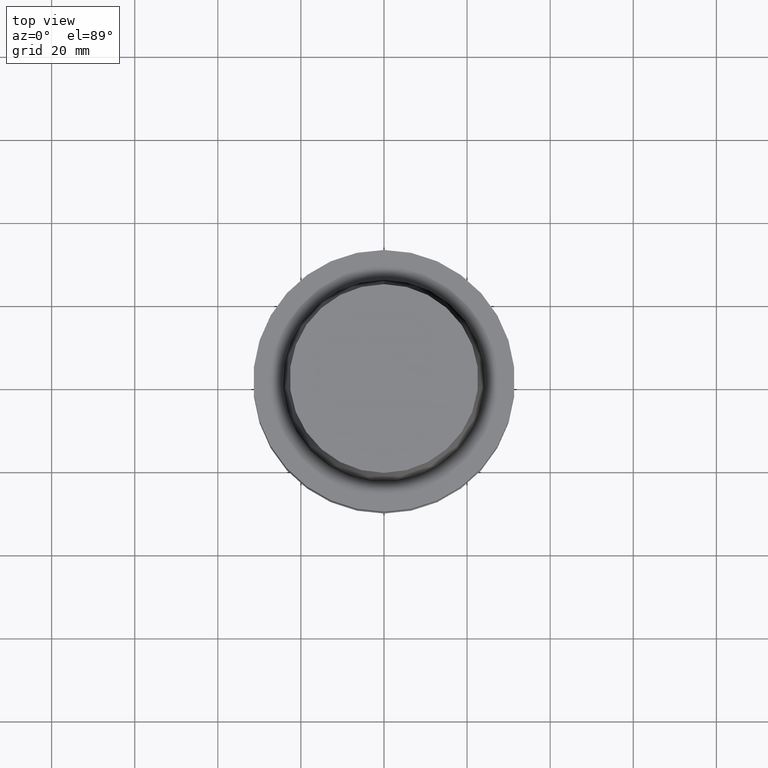
[diagram: clean part render]
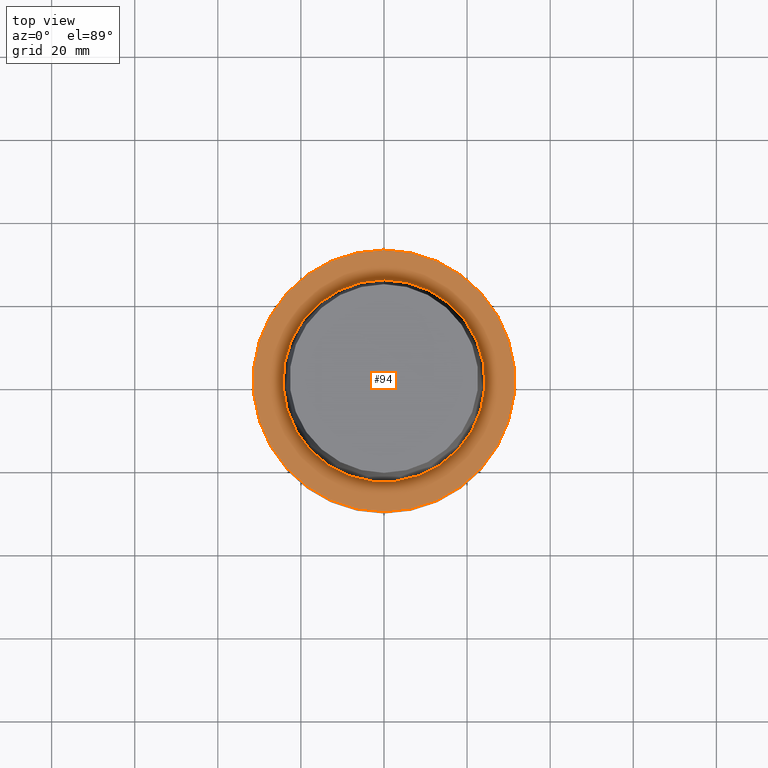
[diagram: same view with one face highlighted and labeled with its STEP entity id]
A machine part, top view. The second image highlights one B-rep face of the part: STEP entity #94.
In plain terms, the highlighted planar face has unit normal (-0, -0, 1).
Its self-contained STEP definition (entity closure, byte-faithful):
#94=ADVANCED_FACE('',(#151,#152),#153,.T.);
#151=FACE_BOUND('',#209,.T.);
#152=FACE_OUTER_BOUND('',#210,.T.);
#153=PLANE('',#211);
#209=EDGE_LOOP('',(#305));
#210=EDGE_LOOP('',(#306));
#211=AXIS2_PLACEMENT_3D('',#307,#308,#309);
#305=ORIENTED_EDGE('',*,*,#311,.T.);
#306=ORIENTED_EDGE('',*,*,#313,.F.);
#307=CARTESIAN_POINT('',(-3.40924878510528E-031,27.907500000104,3.36768305473321E-015));
#308=DIRECTION('',(-6.12323399573677E-017,-1.08546795432774E-016,1.0));
#309=DIRECTION('',(1.14737270099915E-032,-1.0,-1.08546795432774E-016));
#311=EDGE_CURVE('',#331,#331,#332,.T.);
#313=EDGE_CURVE('',#335,#335,#336,.T.);
#331=VERTEX_POINT('',#369);
#332=CIRCLE('',#370,24.3150000002079);
#335=VERTEX_POINT('',#373);
#336=CIRCLE('',#374,31.5);
#369=CARTESIAN_POINT('',(-2.99705514228327E-031,24.3150000002079,2.97772869215225E-015));
#370=AXIS2_PLACEMENT_3D('',#408,#409,#410);
#373=CARTESIAN_POINT('',(-3.8214424279273E-031,31.5,3.75763741731416E-015));
#374=AXIS2_PLACEMENT_3D('',#414,#415,#416);
#408=CARTESIAN_POINT('',(0.0,0.0,0.0));
#409=DIRECTION('',(6.12323399573677E-017,1.08546795432774E-016,-1.0));
#410=DIRECTION('',(-1.14737270099915E-032,1.0,1.08546795432774E-016));
#414=CARTESIAN_POINT('',(6.12323399573677E-033,1.22464679914735E-032,-1.0E-016));
#415=DIRECTION('',(6.12323399573677E-017,1.22464679914735E-016,-1.0));
#416=DIRECTION('',(-1.23259516440783E-032,1.0,1.22464679914735E-016));